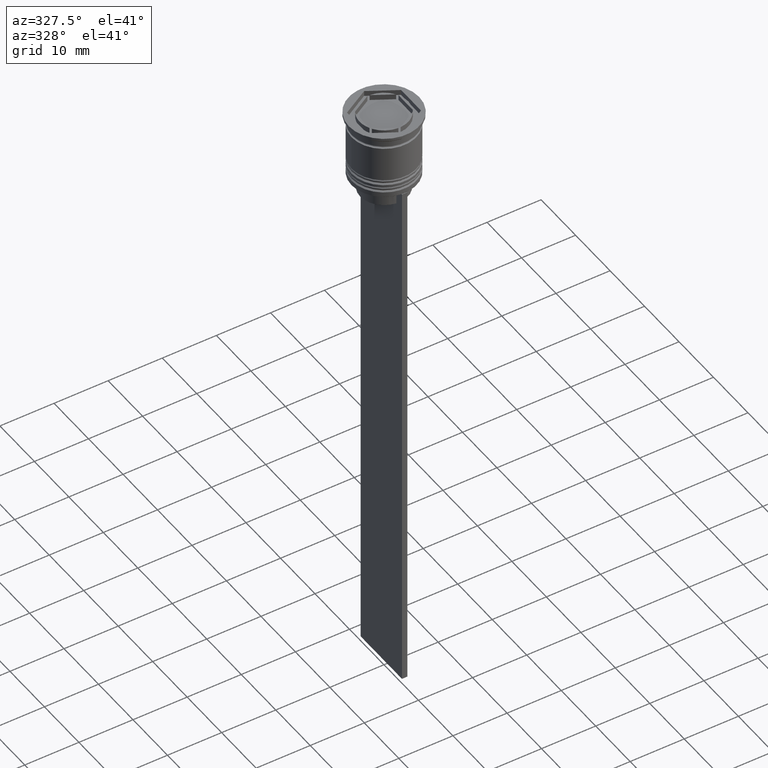
[diagram: clean part render]
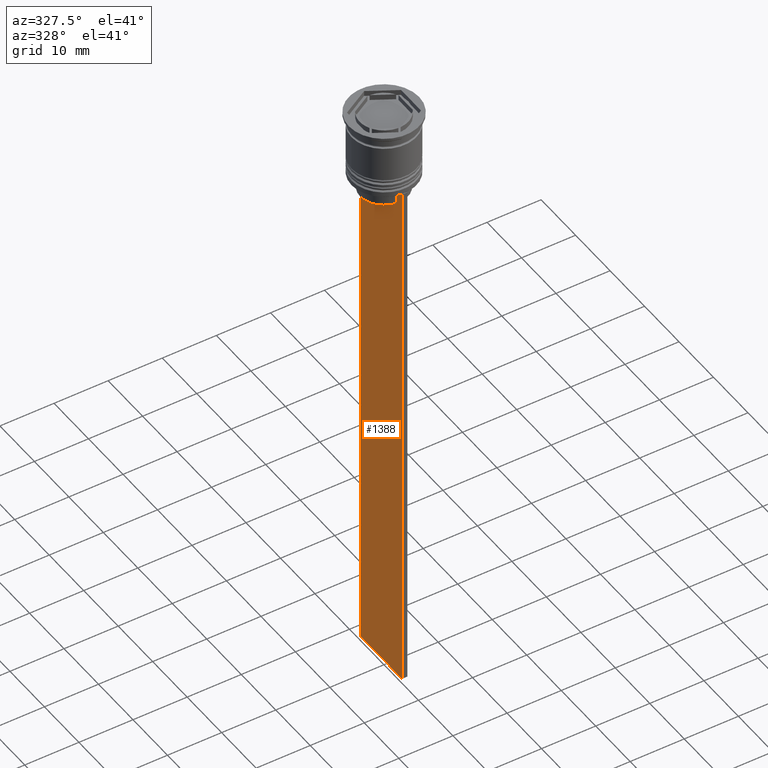
[diagram: same view with one face highlighted and labeled with its STEP entity id]
A machine part, auxiliary view. The second image highlights one B-rep face of the part: STEP entity #1388.
In plain terms, the highlighted planar face has unit normal (-1, 0, 0).
Its self-contained STEP definition (entity closure, byte-faithful):
#5 = VECTOR ( 'NONE', #356, 1000.000000000000000 ) ;
#14 = VECTOR ( 'NONE', #1578, 1000.000000000000000 ) ;
#22 = VERTEX_POINT ( 'NONE', #2443 ) ;
#36 = CARTESIAN_POINT ( 'NONE',  ( -0.4999999999999997780, -6.000000000000000000, -12.50000000000000000 ) ) ;
#105 = CARTESIAN_POINT ( 'NONE',  ( -0.4999999999999997780, 6.000000000000000888, -112.5000000000000000 ) ) ;
#115 = EDGE_CURVE ( 'NONE', #626, #2043, #1067, .T. ) ;
#121 = LINE ( 'NONE', #880, #572 ) ;
#127 = LINE ( 'NONE', #707, #340 ) ;
#159 = CARTESIAN_POINT ( 'NONE',  ( -0.4999999999999997780, 4.371498598878878816, -15.50000000000000000 ) ) ;
#184 = CARTESIAN_POINT ( 'NONE',  ( -0.4999999999999997780, -4.371498598878878816, 0.000000000000000000 ) ) ;
#274 = CARTESIAN_POINT ( 'NONE',  ( -0.4999999999999997780, 4.874423042781576676, -12.50000000000000000 ) ) ;
#314 = LINE ( 'NONE', #2048, #574 ) ;
#326 = EDGE_CURVE ( 'NONE', #2250, #1565, #1544, .T. ) ;
#331 = VERTEX_POINT ( 'NONE', #2102 ) ;
#335 = EDGE_CURVE ( 'NONE', #1634, #1565, #952, .T. ) ;
#340 = VECTOR ( 'NONE', #2448, 1000.000000000000000 ) ;
#356 = DIRECTION ( 'NONE',  ( 0.000000000000000000, 0.000000000000000000, -1.000000000000000000 ) ) ;
#358 = CARTESIAN_POINT ( 'NONE',  ( -0.4999999999999997780, -4.539195586926424220, -12.83338928448044136 ) ) ;
#426 = VECTOR ( 'NONE', #2368, 1000.000000000000000 ) ;
#477 = VERTEX_POINT ( 'NONE', #613 ) ;
#486 = CARTESIAN_POINT ( 'NONE',  ( -0.4999999999999997780, 6.000000000000001776, -12.50000000000000000 ) ) ;
#517 = VERTEX_POINT ( 'NONE', #889 ) ;
#544 = CARTESIAN_POINT ( 'NONE',  ( -0.4999999999999997780, -4.874423042781576676, -12.50000000000000000 ) ) ;
#572 = VECTOR ( 'NONE', #1642, 1000.000000000000000 ) ;
#574 = VECTOR ( 'NONE', #1079, 1000.000000000000000 ) ;
#592 = LINE ( 'NONE', #1187, #779 ) ;
#613 = CARTESIAN_POINT ( 'NONE',  ( -0.4999999999999997780, 4.371498598878878816, -13.00000000000000178 ) ) ;
#624 = EDGE_CURVE ( 'NONE', #1634, #1739, #121, .T. ) ;
#626 = VERTEX_POINT ( 'NONE', #1842 ) ;
#669 = EDGE_CURVE ( 'NONE', #517, #626, #1518, .T. ) ;
#671 = VERTEX_POINT ( 'NONE', #159 ) ;
#681 = ORIENTED_EDGE ( 'NONE', *, *, #326, .F. ) ;
#707 = CARTESIAN_POINT ( 'NONE',  ( -0.4999999999999997780, 4.399999999999999467, -15.50000000000000000 ) ) ;
#758 = EDGE_CURVE ( 'NONE', #477, #671, #1890, .T. ) ;
#779 = VECTOR ( 'NONE', #1400, 1000.000000000000000 ) ;
#880 = CARTESIAN_POINT ( 'NONE',  ( -0.4999999999999997780, -6.000000000000000000, -12.50000000000000000 ) ) ;
#889 = CARTESIAN_POINT ( 'NONE',  ( -0.4999999999999997780, -4.371498598878878816, -15.50000000000000000 ) ) ;
#952 = LINE ( 'NONE', #1122, #1652 ) ;
#998 = CARTESIAN_POINT ( 'NONE',  ( -0.4999999999999997780, -6.000000000000000000, -12.50000000000000000 ) ) ;
#1030 = LINE ( 'NONE', #998, #14 ) ;
#1032 = ORIENTED_EDGE ( 'NONE', *, *, #624, .F. ) ;
#1053 = FACE_OUTER_BOUND ( 'NONE', #2091, .T. ) ;
#1067 = B_SPLINE_CURVE_WITH_KNOTS ( 'NONE', 3,
 ( #1639, #358, #1995, #544 ),
 .UNSPECIFIED., .F., .F.,
 ( 4, 4 ),
 ( 0.02089901220910806920, 0.02161421017310284978 ),
 .UNSPECIFIED. ) ;
#1071 = ORIENTED_EDGE ( 'NONE', *, *, #758, .F. ) ;
#1075 = ORIENTED_EDGE ( 'NONE', *, *, #335, .T. ) ;
#1079 = DIRECTION ( 'NONE',  ( 0.000000000000000000, -1.000000000000000000, 0.000000000000000000 ) ) ;
#1122 = CARTESIAN_POINT ( 'NONE',  ( -0.4999999999999997780, 6.000000000000000888, -0.4584054212077061097 ) ) ;
#1123 = CARTESIAN_POINT ( 'NONE',  ( -0.4999999999999997780, -6.000000000000000000, -112.5000000000000000 ) ) ;
#1135 = DIRECTION ( 'NONE',  ( 0.000000000000000000, 1.000000000000000000, 0.000000000000000000 ) ) ;
#1146 = DIRECTION ( 'NONE',  ( -0.000000000000000000, -0.000000000000000000, 1.000000000000000000 ) ) ;
#1187 = CARTESIAN_POINT ( 'NONE',  ( -0.4999999999999997780, -6.000000000000000000, -0.4584054212077061097 ) ) ;
#1194 = EDGE_CURVE ( 'NONE', #1739, #1924, #314, .T. ) ;
#1215 = ORIENTED_EDGE ( 'NONE', *, *, #1753, .F. ) ;
#1251 = ORIENTED_EDGE ( 'NONE', *, *, #1888, .F. ) ;
#1388 = ADVANCED_FACE ( 'NONE', ( #1053 ), #2330, .T. ) ;
#1400 = DIRECTION ( 'NONE',  ( 0.000000000000000000, 0.000000000000000000, -1.000000000000000000 ) ) ;
#1415 = ORIENTED_EDGE ( 'NONE', *, *, #2267, .F. ) ;
#1430 = LINE ( 'NONE', #36, #426 ) ;
#1463 = AXIS2_PLACEMENT_3D ( 'NONE', #1599, #1812, #2199 ) ;
#1518 = LINE ( 'NONE', #184, #1817 ) ;
#1544 = LINE ( 'NONE', #2314, #2463 ) ;
#1546 = CARTESIAN_POINT ( 'NONE',  ( -0.4999999999999997780, 4.706831415367290106, -12.66671683478478982 ) ) ;
#1564 = B_SPLINE_CURVE_WITH_KNOTS ( 'NONE', 3,
 ( #2127, #1546, #2317, #2265 ),
 .UNSPECIFIED., .F., .F.,
 ( 4, 4 ),
 ( 0.008336552452178418518, 0.009045730124312837891 ),
 .UNSPECIFIED. ) ;
#1565 = VERTEX_POINT ( 'NONE', #105 ) ;
#1578 = DIRECTION ( 'NONE',  ( 0.000000000000000000, -1.000000000000000000, 0.000000000000000000 ) ) ;
#1599 = CARTESIAN_POINT ( 'NONE',  ( -0.4999999999999997780, -6.000000000000000000, -0.4584054212077061097 ) ) ;
#1630 = CARTESIAN_POINT ( 'NONE',  ( -0.4999999999999997780, -4.874423042781576676, -12.50000000000000000 ) ) ;
#1634 = VERTEX_POINT ( 'NONE', #486 ) ;
#1639 = CARTESIAN_POINT ( 'NONE',  ( -0.4999999999999997780, -4.371498598878878816, -13.00000000000000178 ) ) ;
#1642 = DIRECTION ( 'NONE',  ( 0.000000000000000000, -1.000000000000000000, 0.000000000000000000 ) ) ;
#1652 = VECTOR ( 'NONE', #1895, 1000.000000000000000 ) ;
#1664 = EDGE_CURVE ( 'NONE', #671, #517, #127, .T. ) ;
#1727 = CARTESIAN_POINT ( 'NONE',  ( -0.4999999999999997780, 5.878775382679627626, -12.50000000000000000 ) ) ;
#1739 = VERTEX_POINT ( 'NONE', #1727 ) ;
#1753 = EDGE_CURVE ( 'NONE', #1924, #477, #1564, .T. ) ;
#1812 = DIRECTION ( 'NONE',  ( -1.000000000000000000, 0.000000000000000000, 0.000000000000000000 ) ) ;
#1817 = VECTOR ( 'NONE', #1146, 1000.000000000000000 ) ;
#1842 = CARTESIAN_POINT ( 'NONE',  ( -0.4999999999999997780, -4.371498598878878816, -13.00000000000000178 ) ) ;
#1888 = EDGE_CURVE ( 'NONE', #2043, #22, #1430, .T. ) ;
#1890 = LINE ( 'NONE', #2077, #5 ) ;
#1895 = DIRECTION ( 'NONE',  ( 0.000000000000000000, 0.000000000000000000, -1.000000000000000000 ) ) ;
#1924 = VERTEX_POINT ( 'NONE', #274 ) ;
#1995 = CARTESIAN_POINT ( 'NONE',  ( -0.4999999999999997780, -4.706831372970964544, -12.66671687695981596 ) ) ;
#2032 = ORIENTED_EDGE ( 'NONE', *, *, #115, .F. ) ;
#2043 = VERTEX_POINT ( 'NONE', #1630 ) ;
#2047 = EDGE_CURVE ( 'NONE', #22, #331, #1030, .T. ) ;
#2048 = CARTESIAN_POINT ( 'NONE',  ( -0.4999999999999997780, -6.000000000000000000, -12.50000000000000000 ) ) ;
#2077 = CARTESIAN_POINT ( 'NONE',  ( -0.4999999999999997780, 4.371498598878878816, 0.000000000000000000 ) ) ;
#2091 = EDGE_LOOP ( 'NONE', ( #1215, #2291, #1032, #1075, #681, #1415, #2460, #1251, #2032, #2205, #2219, #1071 ) ) ;
#2102 = CARTESIAN_POINT ( 'NONE',  ( -0.4999999999999997780, -6.000000000000000000, -12.50000000000000000 ) ) ;
#2127 = CARTESIAN_POINT ( 'NONE',  ( -0.4999999999999997780, 4.874423042781576676, -12.50000000000000000 ) ) ;
#2199 = DIRECTION ( 'NONE',  ( 0.000000000000000000, 0.000000000000000000, 1.000000000000000000 ) ) ;
#2205 = ORIENTED_EDGE ( 'NONE', *, *, #669, .F. ) ;
#2219 = ORIENTED_EDGE ( 'NONE', *, *, #1664, .F. ) ;
#2250 = VERTEX_POINT ( 'NONE', #1123 ) ;
#2265 = CARTESIAN_POINT ( 'NONE',  ( -0.4999999999999997780, 4.371498598878878816, -13.00000000000000178 ) ) ;
#2267 = EDGE_CURVE ( 'NONE', #331, #2250, #592, .T. ) ;
#2291 = ORIENTED_EDGE ( 'NONE', *, *, #1194, .F. ) ;
#2314 = CARTESIAN_POINT ( 'NONE',  ( -0.4999999999999997780, -6.000000000000000000, -112.5000000000000000 ) ) ;
#2317 = CARTESIAN_POINT ( 'NONE',  ( -0.4999999999999997780, 4.539195634199897356, -12.83338923751318816 ) ) ;
#2330 = PLANE ( 'NONE',  #1463 ) ;
#2368 = DIRECTION ( 'NONE',  ( 0.000000000000000000, -1.000000000000000000, 0.000000000000000000 ) ) ;
#2443 = CARTESIAN_POINT ( 'NONE',  ( -0.4999999999999997780, -5.878775382679627626, -12.50000000000000000 ) ) ;
#2448 = DIRECTION ( 'NONE',  ( 0.000000000000000000, -1.000000000000000000, 0.000000000000000000 ) ) ;
#2460 = ORIENTED_EDGE ( 'NONE', *, *, #2047, .F. ) ;
#2463 = VECTOR ( 'NONE', #1135, 1000.000000000000000 ) ;